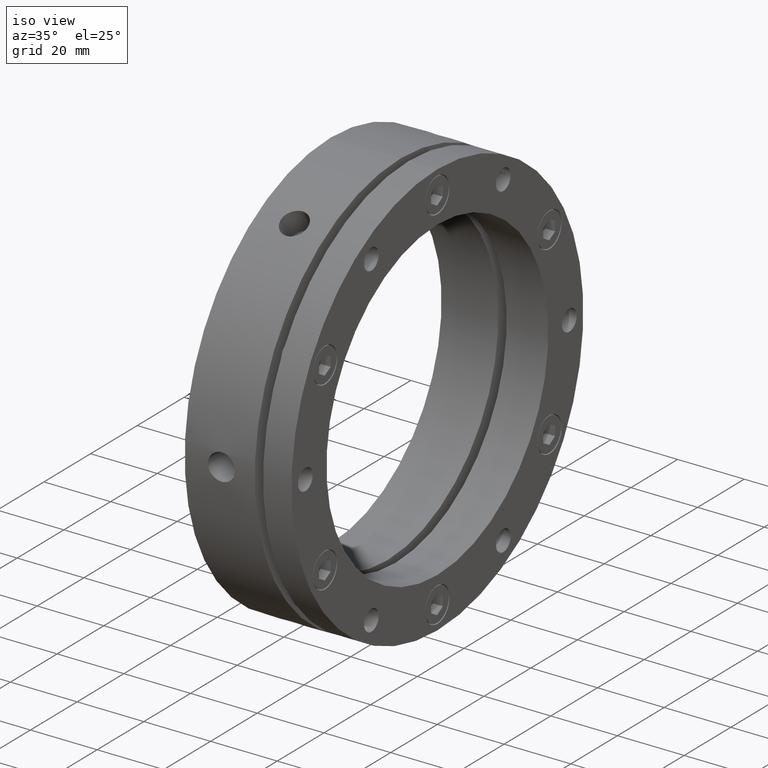
[diagram: clean part render]
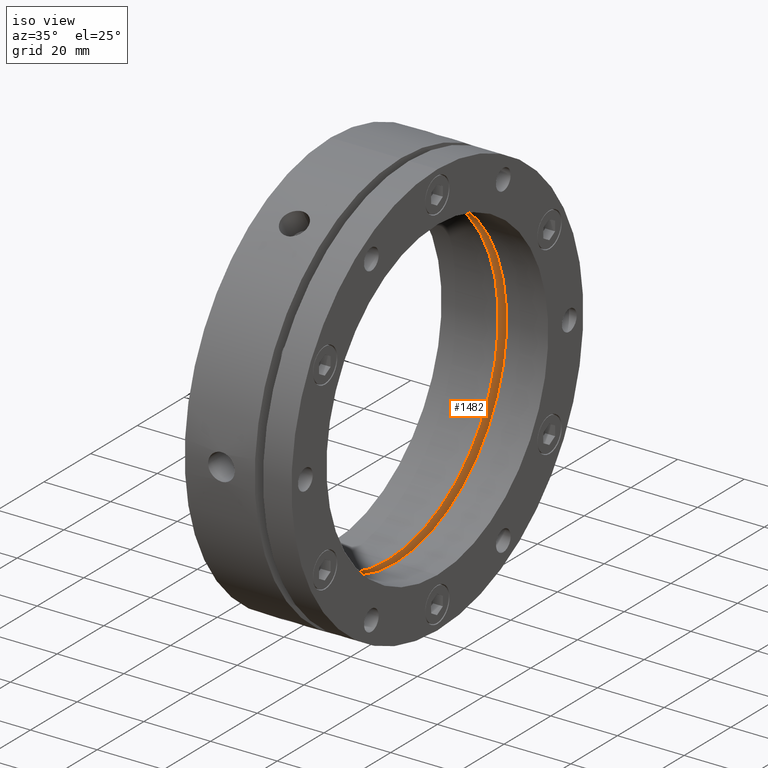
[diagram: same view with one face highlighted and labeled with its STEP entity id]
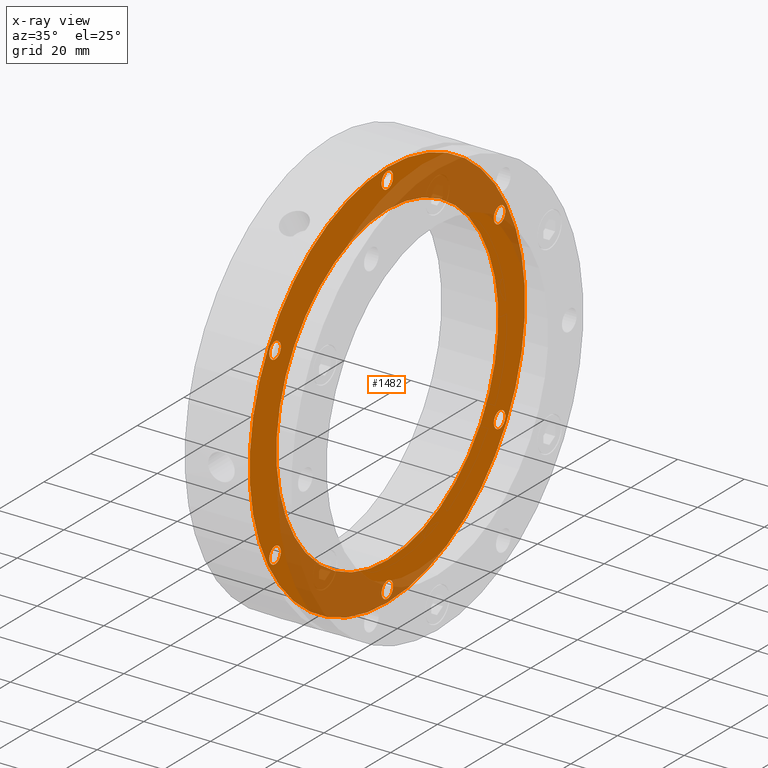
[diagram: x-ray of the same camera — body ghosted, the highlighted face saturated]
A machine part, iso view. The second image highlights one B-rep face of the part: STEP entity #1482.
The next image is the same camera in x-ray: the body ghosted, the highlighted face saturated — about 32% of this face is hidden behind the body in this view.
In plain terms, the highlighted planar face has unit normal (-1, 0, 0).
Its self-contained STEP definition (entity closure, byte-faithful):
#27 = VERTEX_POINT ( 'NONE', #1068 ) ;
#32 = VERTEX_POINT ( 'NONE', #1073 ) ;
#34 = VERTEX_POINT ( 'NONE', #1075 ) ;
#36 = VERTEX_POINT ( 'NONE', #1077 ) ;
#52 = VERTEX_POINT ( 'NONE', #1093 ) ;
#55 = VERTEX_POINT ( 'NONE', #1096 ) ;
#95 = VERTEX_POINT ( 'NONE', #1136 ) ;
#117 = VERTEX_POINT ( 'NONE', #1158 ) ;
#118 = VERTEX_POINT ( 'NONE', #1159 ) ;
#122 = VERTEX_POINT ( 'NONE', #1163 ) ;
#153 = VERTEX_POINT ( 'NONE', #1194 ) ;
#154 = VERTEX_POINT ( 'NONE', #1195 ) ;
#155 = VERTEX_POINT ( 'NONE', #1196 ) ;
#162 = VERTEX_POINT ( 'NONE', #1203 ) ;
#167 = VERTEX_POINT ( 'NONE', #1208 ) ;
#170 = VERTEX_POINT ( 'NONE', #1210 ) ;
#235 = FACE_OUTER_BOUND ( 'NONE', #292, .T. ) ;
#236 = FACE_BOUND ( 'NONE', #294, .T. ) ;
#237 = FACE_BOUND ( 'NONE', #298, .T. ) ;
#238 = FACE_BOUND ( 'NONE', #297, .T. ) ;
#240 = FACE_BOUND ( 'NONE', #293, .T. ) ;
#242 = FACE_BOUND ( 'NONE', #302, .T. ) ;
#244 = FACE_BOUND ( 'NONE', #296, .T. ) ;
#246 = FACE_BOUND ( 'NONE', #295, .T. ) ;
#292 = EDGE_LOOP ( 'NONE', ( #1046, #1045 ) ) ;
#293 = EDGE_LOOP ( 'NONE', ( #1825, #1051 ) ) ;
#294 = EDGE_LOOP ( 'NONE', ( #1048, #1047 ) ) ;
#295 = EDGE_LOOP ( 'NONE', ( #1754, #1751 ) ) ;
#296 = EDGE_LOOP ( 'NONE', ( #1826, #1830 ) ) ;
#297 = EDGE_LOOP ( 'NONE', ( #1822, #1823 ) ) ;
#298 = EDGE_LOOP ( 'NONE', ( #1050, #1049 ) ) ;
#302 = EDGE_LOOP ( 'NONE', ( #1824, #1833 ) ) ;
#468 = CIRCLE ( 'NONE', #3798, 59.00000000000000700 ) ;
#483 = CIRCLE ( 'NONE', #3801, 2.458500000000002600 ) ;
#500 = CIRCLE ( 'NONE', #3807, 47.50000000000000000 ) ;
#761 = CIRCLE ( 'NONE', #3841, 2.458499999999999000 ) ;
#768 = CIRCLE ( 'NONE', #3843, 2.458500000000002600 ) ;
#845 = EDGE_CURVE ( 'NONE', #154, #167, #768, .T. ) ;
#849 = EDGE_CURVE ( 'NONE', #95, #34, #761, .T. ) ;
#855 = EDGE_CURVE ( 'NONE', #27, #170, #3360, .T. ) ;
#860 = EDGE_CURVE ( 'NONE', #153, #155, #3409, .T. ) ;
#867 = EDGE_CURVE ( 'NONE', #36, #52, #3398, .T. ) ;
#1045 = ORIENTED_EDGE ( 'NONE', *, *, #1436, .F. ) ;
#1046 = ORIENTED_EDGE ( 'NONE', *, *, #3911, .F. ) ;
#1047 = ORIENTED_EDGE ( 'NONE', *, *, #855, .T. ) ;
#1048 = ORIENTED_EDGE ( 'NONE', *, *, #3849, .T. ) ;
#1049 = ORIENTED_EDGE ( 'NONE', *, *, #849, .T. ) ;
#1050 = ORIENTED_EDGE ( 'NONE', *, *, #3850, .T. ) ;
#1051 = ORIENTED_EDGE ( 'NONE', *, *, #845, .T. ) ;
#1068 = CARTESIAN_POINT ( 'NONE',  ( 17.00000000000000700, 48.06440991003638900, 25.29149999999997800 ) ) ;
#1073 = CARTESIAN_POINT ( 'NONE',  ( 17.00000000000000700, 5.817072295949928200E-015, 47.50000000000000000 ) ) ;
#1075 = CARTESIAN_POINT ( 'NONE',  ( 17.00000000000000700, 48.06440991003636000, -25.29150000000003500 ) ) ;
#1077 = CARTESIAN_POINT ( 'NONE',  ( 17.00000000000000700, -48.06440991003636800, 25.29150000000002100 ) ) ;
#1093 = CARTESIAN_POINT ( 'NONE',  ( 17.00000000000000700, -48.06440991003636800, 30.20850000000001500 ) ) ;
#1096 = CARTESIAN_POINT ( 'NONE',  ( 17.00000000000000700, 0.0000000000000000000, 57.95850000000002900 ) ) ;
#1136 = CARTESIAN_POINT ( 'NONE',  ( 17.00000000000000700, 48.06440991003636000, -30.20850000000003300 ) ) ;
#1158 = CARTESIAN_POINT ( 'NONE',  ( 16.99999999999999300, 0.0000000000000000000, 59.00000000000000700 ) ) ;
#1159 = CARTESIAN_POINT ( 'NONE',  ( 16.99999999999999300, 7.225416114969384800E-015, -59.00000000000000700 ) ) ;
#1163 = CARTESIAN_POINT ( 'NONE',  ( 17.00000000000000700, 3.010794155703764200E-016, 53.04150000000002800 ) ) ;
#1194 = CARTESIAN_POINT ( 'NONE',  ( 17.00000000000000700, -48.06440991003636800, -30.20850000000000400 ) ) ;
#1195 = CARTESIAN_POINT ( 'NONE',  ( 17.00000000000000700, -4.139812584429623600E-015, -57.95850000000002900 ) ) ;
#1196 = CARTESIAN_POINT ( 'NONE',  ( 17.00000000000000700, -48.06440991003636800, -25.29150000000000600 ) ) ;
#1203 = CARTESIAN_POINT ( 'NONE',  ( 17.00000000000000700, 0.0000000000000000000, -47.50000000000000000 ) ) ;
#1208 = CARTESIAN_POINT ( 'NONE',  ( 17.00000000000000700, -4.440891999999999900E-015, -53.04150000000002800 ) ) ;
#1210 = CARTESIAN_POINT ( 'NONE',  ( 17.00000000000000700, 48.06440991003638900, 30.20849999999998300 ) ) ;
#1270 = CARTESIAN_POINT ( 'NONE',  ( 17.00000000000000700, -4.440891999999999900E-015, -55.50000000000002800 ) ) ;
#1271 = DIRECTION ( 'NONE',  ( -1.000000000000000000, 0.0000000000000000000, 0.0000000000000000000 ) ) ;
#1272 = DIRECTION ( 'NONE',  ( 0.0000000000000000000, 0.0000000000000000000, 1.000000000000000000 ) ) ;
#1279 = CARTESIAN_POINT ( 'NONE',  ( 17.00000000000000700, 48.06440991003636000, -27.75000000000003600 ) ) ;
#1280 = DIRECTION ( 'NONE',  ( -1.000000000000000000, 0.0000000000000000000, 0.0000000000000000000 ) ) ;
#1281 = DIRECTION ( 'NONE',  ( 0.0000000000000000000, 0.0000000000000000000, 1.000000000000000000 ) ) ;
#1296 = CARTESIAN_POINT ( 'NONE',  ( 17.00000000000000700, 48.06440991003638900, 27.74999999999997900 ) ) ;
#1297 = DIRECTION ( 'NONE',  ( -1.000000000000000000, 0.0000000000000000000, 0.0000000000000000000 ) ) ;
#1298 = DIRECTION ( 'NONE',  ( 0.0000000000000000000, 0.0000000000000000000, 1.000000000000000000 ) ) ;
#1308 = CARTESIAN_POINT ( 'NONE',  ( 17.00000000000000700, -48.06440991003636800, -27.75000000000000400 ) ) ;
#1309 = DIRECTION ( 'NONE',  ( -1.000000000000000000, 0.0000000000000000000, 0.0000000000000000000 ) ) ;
#1310 = DIRECTION ( 'NONE',  ( 0.0000000000000000000, 0.0000000000000000000, 1.000000000000000000 ) ) ;
#1325 = CARTESIAN_POINT ( 'NONE',  ( 17.00000000000000700, -48.06440991003636800, 27.75000000000001800 ) ) ;
#1326 = DIRECTION ( 'NONE',  ( -1.000000000000000000, 0.0000000000000000000, 0.0000000000000000000 ) ) ;
#1327 = DIRECTION ( 'NONE',  ( 0.0000000000000000000, 0.0000000000000000000, 1.000000000000000000 ) ) ;
#1417 = EDGE_CURVE ( 'NONE', #162, #32, #500, .T. ) ;
#1428 = EDGE_CURVE ( 'NONE', #122, #55, #483, .T. ) ;
#1436 = EDGE_CURVE ( 'NONE', #118, #117, #468, .T. ) ;
#1482 = ADVANCED_FACE ( 'NONE', ( #246, #238, #242, #244, #240, #237, #236, #235 ), #2701, .F. ) ;
#1751 = ORIENTED_EDGE ( 'NONE', *, *, #3846, .T. ) ;
#1754 = ORIENTED_EDGE ( 'NONE', *, *, #1417, .T. ) ;
#1822 = ORIENTED_EDGE ( 'NONE', *, *, #3900, .T. ) ;
#1823 = ORIENTED_EDGE ( 'NONE', *, *, #1428, .T. ) ;
#1824 = ORIENTED_EDGE ( 'NONE', *, *, #3845, .T. ) ;
#1825 = ORIENTED_EDGE ( 'NONE', *, *, #3851, .T. ) ;
#1826 = ORIENTED_EDGE ( 'NONE', *, *, #3923, .T. ) ;
#1830 = ORIENTED_EDGE ( 'NONE', *, *, #860, .T. ) ;
#1833 = ORIENTED_EDGE ( 'NONE', *, *, #867, .T. ) ;
#1908 = CIRCLE ( 'NONE', #3503, 2.458500000000002600 ) ;
#1912 = CIRCLE ( 'NONE', #3507, 2.458499999999999000 ) ;
#1918 = CIRCLE ( 'NONE', #3506, 47.50000000000000000 ) ;
#1920 = CIRCLE ( 'NONE', #3502, 2.458499999999999000 ) ;
#1921 = CIRCLE ( 'NONE', #3501, 2.458500000000002600 ) ;
#1980 = CIRCLE ( 'NONE', #3468, 2.458500000000002600 ) ;
#1994 = CIRCLE ( 'NONE', #3460, 59.00000000000000700 ) ;
#2012 = CIRCLE ( 'NONE', #3454, 2.458499999999999000 ) ;
#2506 = CARTESIAN_POINT ( 'NONE',  ( 17.00000000000000700, 0.0000000000000000000, 0.0000000000000000000 ) ) ;
#2507 = DIRECTION ( 'NONE',  ( -1.000000000000000000, -0.0000000000000000000, -0.0000000000000000000 ) ) ;
#2508 = DIRECTION ( 'NONE',  ( 0.0000000000000000000, 0.0000000000000000000, -1.000000000000000000 ) ) ;
#2534 = CARTESIAN_POINT ( 'NONE',  ( 17.00000000000000700, 0.0000000000000000000, 55.50000000000002800 ) ) ;
#2535 = DIRECTION ( 'NONE',  ( -1.000000000000000000, 0.0000000000000000000, 0.0000000000000000000 ) ) ;
#2536 = DIRECTION ( 'NONE',  ( 0.0000000000000000000, 0.0000000000000000000, 1.000000000000000000 ) ) ;
#2553 = CARTESIAN_POINT ( 'NONE',  ( 16.99999999999999300, 0.0000000000000000000, 0.0000000000000000000 ) ) ;
#2554 = DIRECTION ( 'NONE',  ( -1.000000000000000000, 0.0000000000000000000, 0.0000000000000000000 ) ) ;
#2555 = DIRECTION ( 'NONE',  ( 0.0000000000000000000, 0.0000000000000000000, 1.000000000000000000 ) ) ;
#2698 = DIRECTION ( 'NONE',  ( -1.000000000000000000, 0.0000000000000000000, 0.0000000000000000000 ) ) ;
#2700 = CARTESIAN_POINT ( 'NONE',  ( 17.00000000000000700, 29.50000000000000400, 0.0000000000000000000 ) ) ;
#2701 = PLANE ( 'NONE',  #3754 ) ;
#2703 = DIRECTION ( 'NONE',  ( 0.0000000000000000000, 0.0000000000000000000, 1.000000000000000000 ) ) ;
#2988 = CARTESIAN_POINT ( 'NONE',  ( 17.00000000000000700, -48.06440991003636800, 27.75000000000001800 ) ) ;
#2989 = DIRECTION ( 'NONE',  ( -1.000000000000000000, 0.0000000000000000000, 0.0000000000000000000 ) ) ;
#2990 = DIRECTION ( 'NONE',  ( 0.0000000000000000000, 0.0000000000000000000, 1.000000000000000000 ) ) ;
#2991 = CARTESIAN_POINT ( 'NONE',  ( 17.00000000000000700, 0.0000000000000000000, 0.0000000000000000000 ) ) ;
#2992 = DIRECTION ( 'NONE',  ( -1.000000000000000000, -0.0000000000000000000, -0.0000000000000000000 ) ) ;
#2993 = DIRECTION ( 'NONE',  ( 0.0000000000000000000, 0.0000000000000000000, -1.000000000000000000 ) ) ;
#3000 = CARTESIAN_POINT ( 'NONE',  ( 17.00000000000000700, 48.06440991003638900, 27.74999999999997900 ) ) ;
#3001 = DIRECTION ( 'NONE',  ( -1.000000000000000000, 0.0000000000000000000, 0.0000000000000000000 ) ) ;
#3002 = DIRECTION ( 'NONE',  ( 0.0000000000000000000, 0.0000000000000000000, 1.000000000000000000 ) ) ;
#3003 = CARTESIAN_POINT ( 'NONE',  ( 17.00000000000000700, 48.06440991003636000, -27.75000000000003600 ) ) ;
#3004 = DIRECTION ( 'NONE',  ( -1.000000000000000000, 0.0000000000000000000, 0.0000000000000000000 ) ) ;
#3005 = DIRECTION ( 'NONE',  ( 0.0000000000000000000, 0.0000000000000000000, 1.000000000000000000 ) ) ;
#3006 = CARTESIAN_POINT ( 'NONE',  ( 17.00000000000000700, -4.440891999999999900E-015, -55.50000000000002800 ) ) ;
#3007 = DIRECTION ( 'NONE',  ( -1.000000000000000000, 0.0000000000000000000, 0.0000000000000000000 ) ) ;
#3008 = DIRECTION ( 'NONE',  ( 0.0000000000000000000, 0.0000000000000000000, 1.000000000000000000 ) ) ;
#3235 = CARTESIAN_POINT ( 'NONE',  ( 17.00000000000000700, 0.0000000000000000000, 55.50000000000002800 ) ) ;
#3236 = DIRECTION ( 'NONE',  ( -1.000000000000000000, 0.0000000000000000000, 0.0000000000000000000 ) ) ;
#3237 = DIRECTION ( 'NONE',  ( 0.0000000000000000000, 0.0000000000000000000, 1.000000000000000000 ) ) ;
#3266 = CARTESIAN_POINT ( 'NONE',  ( 16.99999999999999300, 0.0000000000000000000, 0.0000000000000000000 ) ) ;
#3267 = DIRECTION ( 'NONE',  ( -1.000000000000000000, 0.0000000000000000000, 0.0000000000000000000 ) ) ;
#3268 = DIRECTION ( 'NONE',  ( 0.0000000000000000000, 0.0000000000000000000, 1.000000000000000000 ) ) ;
#3293 = CARTESIAN_POINT ( 'NONE',  ( 17.00000000000000700, -48.06440991003636800, -27.75000000000000400 ) ) ;
#3294 = DIRECTION ( 'NONE',  ( -1.000000000000000000, 0.0000000000000000000, 0.0000000000000000000 ) ) ;
#3295 = DIRECTION ( 'NONE',  ( 0.0000000000000000000, 0.0000000000000000000, 1.000000000000000000 ) ) ;
#3360 = CIRCLE ( 'NONE', #3838, 2.458500000000002600 ) ;
#3398 = CIRCLE ( 'NONE', #3834, 2.458499999999999000 ) ;
#3409 = CIRCLE ( 'NONE', #3836, 2.458499999999999000 ) ;
#3454 = AXIS2_PLACEMENT_3D ( 'NONE', #3293, #3294, #3295 ) ;
#3460 = AXIS2_PLACEMENT_3D ( 'NONE', #3266, #3267, #3268 ) ;
#3468 = AXIS2_PLACEMENT_3D ( 'NONE', #3235, #3236, #3237 ) ;
#3501 = AXIS2_PLACEMENT_3D ( 'NONE', #3006, #3007, #3008 ) ;
#3502 = AXIS2_PLACEMENT_3D ( 'NONE', #3003, #3004, #3005 ) ;
#3503 = AXIS2_PLACEMENT_3D ( 'NONE', #3000, #3001, #3002 ) ;
#3506 = AXIS2_PLACEMENT_3D ( 'NONE', #2991, #2992, #2993 ) ;
#3507 = AXIS2_PLACEMENT_3D ( 'NONE', #2988, #2989, #2990 ) ;
#3754 = AXIS2_PLACEMENT_3D ( 'NONE', #2700, #2698, #2703 ) ;
#3798 = AXIS2_PLACEMENT_3D ( 'NONE', #2553, #2554, #2555 ) ;
#3801 = AXIS2_PLACEMENT_3D ( 'NONE', #2534, #2535, #2536 ) ;
#3807 = AXIS2_PLACEMENT_3D ( 'NONE', #2506, #2507, #2508 ) ;
#3834 = AXIS2_PLACEMENT_3D ( 'NONE', #1325, #1326, #1327 ) ;
#3836 = AXIS2_PLACEMENT_3D ( 'NONE', #1308, #1309, #1310 ) ;
#3838 = AXIS2_PLACEMENT_3D ( 'NONE', #1296, #1297, #1298 ) ;
#3841 = AXIS2_PLACEMENT_3D ( 'NONE', #1279, #1280, #1281 ) ;
#3843 = AXIS2_PLACEMENT_3D ( 'NONE', #1270, #1271, #1272 ) ;
#3845 = EDGE_CURVE ( 'NONE', #52, #36, #1912, .T. ) ;
#3846 = EDGE_CURVE ( 'NONE', #32, #162, #1918, .T. ) ;
#3849 = EDGE_CURVE ( 'NONE', #170, #27, #1908, .T. ) ;
#3850 = EDGE_CURVE ( 'NONE', #34, #95, #1920, .T. ) ;
#3851 = EDGE_CURVE ( 'NONE', #167, #154, #1921, .T. ) ;
#3900 = EDGE_CURVE ( 'NONE', #55, #122, #1980, .T. ) ;
#3911 = EDGE_CURVE ( 'NONE', #117, #118, #1994, .T. ) ;
#3923 = EDGE_CURVE ( 'NONE', #155, #153, #2012, .T. ) ;